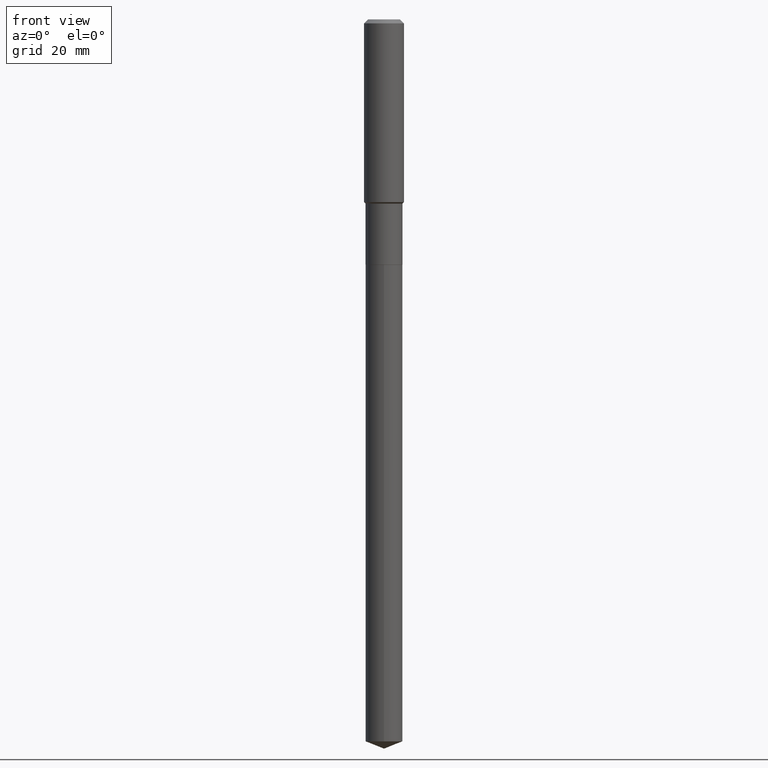
[diagram: clean part render]
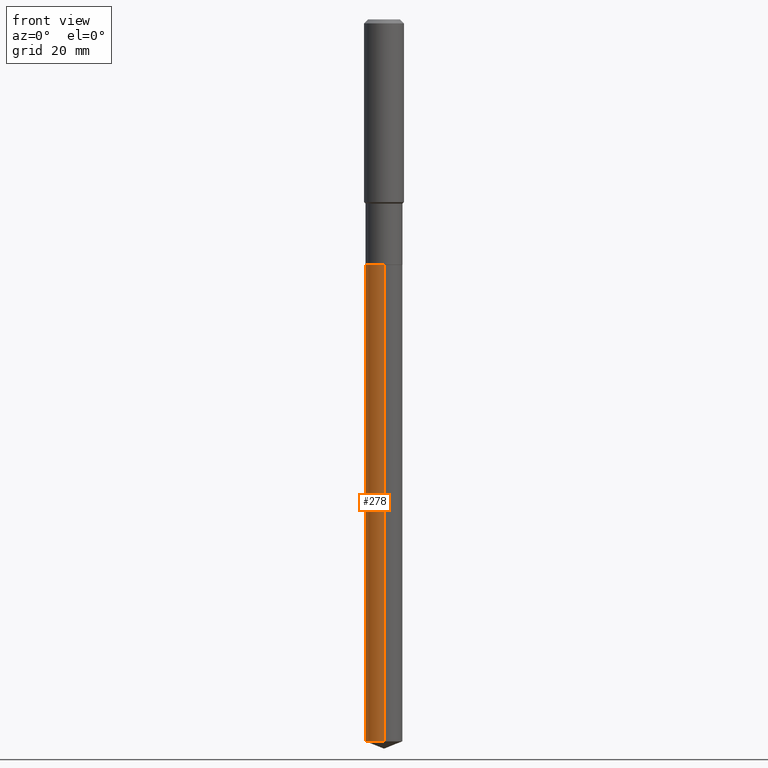
[diagram: same view with one face highlighted and labeled with its STEP entity id]
A machine part, front view. The second image highlights one B-rep face of the part: STEP entity #278.
In plain terms, the highlighted cylindrical surface (edge-blend (fillet) strip) has radius 3.6995 mm, axis along (-0, 0, 1).
Its self-contained STEP definition (entity closure, byte-faithful):
#7 = EDGE_CURVE ( 'NONE', #409, #174, #345, .T. ) ;
#10 = CARTESIAN_POINT ( 'NONE',  ( -1.017068514004865822E-15, -0.1456500000000199302, -5.690626939226684833 ) ) ;
#15 = VERTEX_POINT ( 'NONE', #366 ) ;
#24 = LINE ( 'NONE', #134, #223 ) ;
#47 = FACE_OUTER_BOUND ( 'NONE', #402, .T. ) ;
#69 = CARTESIAN_POINT ( 'NONE',  ( -1.017068514004957330E-15, -0.1456500000000067463, -1.932999999999999385 ) ) ;
#76 = ORIENTED_EDGE ( 'NONE', *, *, #243, .F. ) ;
#90 = EDGE_CURVE ( 'NONE', #174, #203, #360, .T. ) ;
#110 = AXIS2_PLACEMENT_3D ( 'NONE', #338, #335, #157 ) ;
#121 = CYLINDRICAL_SURFACE ( 'NONE', #381, 0.1456500000000000017 ) ;
#131 = ORIENTED_EDGE ( 'NONE', *, *, #315, .F. ) ;
#134 = CARTESIAN_POINT ( 'NONE',  ( 1.034905494634633067E-15, 0.1456499999999932571, -1.933000000000000496 ) ) ;
#136 = CIRCLE ( 'NONE', #110, 0.1456500000000000017 ) ;
#157 = DIRECTION ( 'NONE',  ( -6.982962677686265922E-15, -1.000000000000000000, 3.751250248766581581E-15 ) ) ;
#161 = CARTESIAN_POINT ( 'NONE',  ( -1.017068514004957330E-15, -0.1456500000000067463, -1.932999999999999385 ) ) ;
#174 = VERTEX_POINT ( 'NONE', #10 ) ;
#194 = DIRECTION ( 'NONE',  ( -6.982962677686265922E-15, -1.000000000000000000, 3.751250248766581581E-15 ) ) ;
#202 = DIRECTION ( 'NONE',  ( -2.445505692520665216E-29, 3.491428515511228299E-15, 1.000000000000000000 ) ) ;
#203 = VERTEX_POINT ( 'NONE', #161 ) ;
#220 = DIRECTION ( 'NONE',  ( -2.445505692520665216E-29, 3.491428515511228299E-15, 1.000000000000000000 ) ) ;
#223 = VECTOR ( 'NONE', #202, 39.37007874015748143 ) ;
#243 = EDGE_CURVE ( 'NONE', #15, #203, #136, .T. ) ;
#267 = CARTESIAN_POINT ( 'NONE',  ( 4.727091202355868625E-29, -6.749033427983799432E-15, -1.932999999999999829 ) ) ;
#278 = ADVANCED_FACE ( 'NONE', ( #47 ), #121, .T. ) ;
#313 = ORIENTED_EDGE ( 'NONE', *, *, #7, .T. ) ;
#315 = EDGE_CURVE ( 'NONE', #409, #15, #24, .T. ) ;
#329 = CARTESIAN_POINT ( 'NONE',  ( 1.391638927260372987E-28, -1.986851927425302503E-14, -5.690626939226684833 ) ) ;
#335 = DIRECTION ( 'NONE',  ( -2.445505692520665496E-29, 3.491428515511228693E-15, 1.000000000000000000 ) ) ;
#338 = CARTESIAN_POINT ( 'NONE',  ( 4.727091202355868625E-29, -6.749033427983799432E-15, -1.932999999999999829 ) ) ;
#345 = CIRCLE ( 'NONE', #488, 0.1456500000000000017 ) ;
#360 = LINE ( 'NONE', #69, #393 ) ;
#364 = CARTESIAN_POINT ( 'NONE',  ( 1.034905494634725561E-15, 0.1456499999999801842, -5.690626939226684833 ) ) ;
#366 = CARTESIAN_POINT ( 'NONE',  ( 1.034905494634725758E-15, 0.1456499999999932848, -1.933000000000000496 ) ) ;
#381 = AXIS2_PLACEMENT_3D ( 'NONE', #267, #415, #194 ) ;
#393 = VECTOR ( 'NONE', #220, 39.37007874015748143 ) ;
#402 = EDGE_LOOP ( 'NONE', ( #131, #313, #421, #76 ) ) ;
#407 = DIRECTION ( 'NONE',  ( -2.445505692520665496E-29, 3.491428515511228693E-15, 1.000000000000000000 ) ) ;
#409 = VERTEX_POINT ( 'NONE', #364 ) ;
#415 = DIRECTION ( 'NONE',  ( -2.445505692520665496E-29, 3.491428515511228693E-15, 1.000000000000000000 ) ) ;
#421 = ORIENTED_EDGE ( 'NONE', *, *, #90, .T. ) ;
#437 = DIRECTION ( 'NONE',  ( -6.982962677686265922E-15, -1.000000000000000000, 0.000000000000000000 ) ) ;
#488 = AXIS2_PLACEMENT_3D ( 'NONE', #329, #407, #437 ) ;